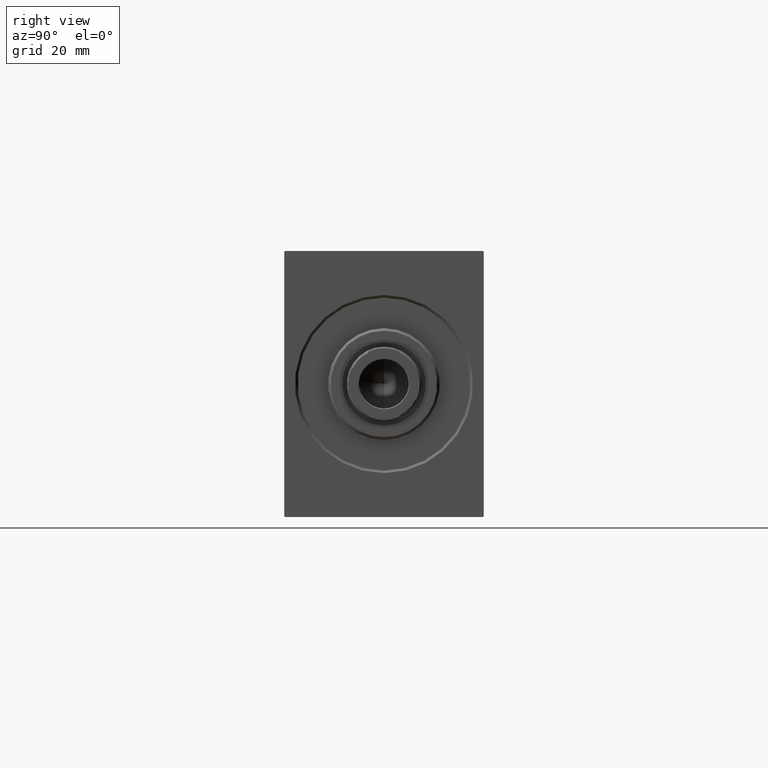
[diagram: clean part render]
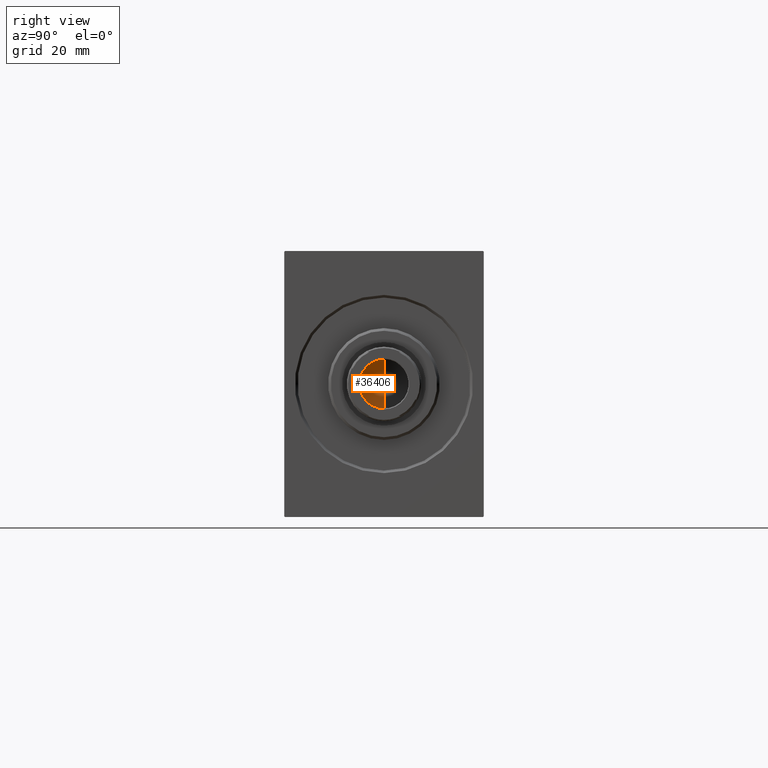
[diagram: same view with one face highlighted and labeled with its STEP entity id]
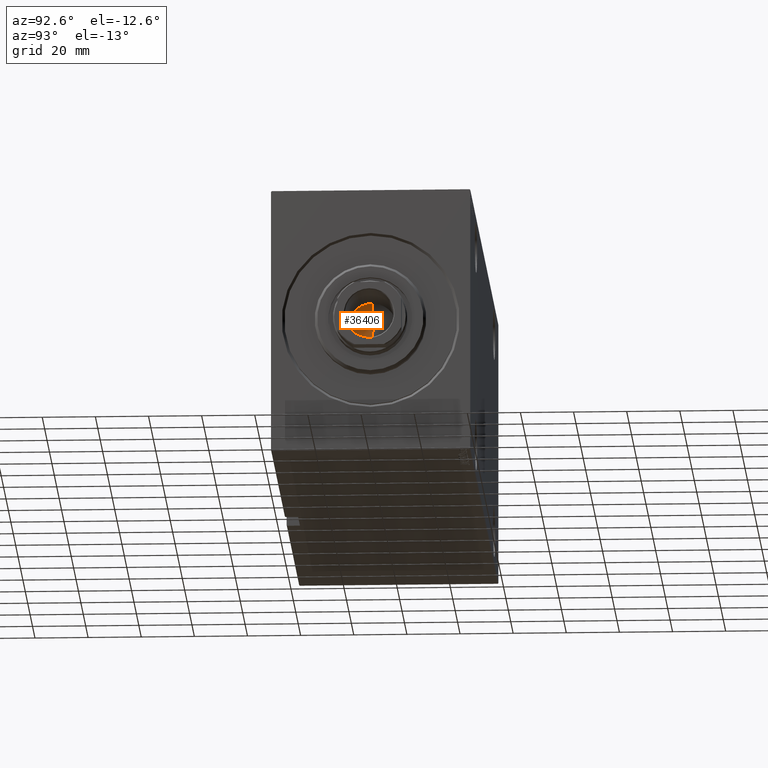
[diagram: same view with one face highlighted and labeled with its STEP entity id]
A machine part, right view. The second image highlights one B-rep face of the part: STEP entity #36406.
A second angle (auxiliary view) of the same face is appended — the face is thin or edge-on in the first view.
In plain terms, the highlighted conical surface has half-angle 59 deg.
Its self-contained STEP definition (entity closure, byte-faithful):
#829 = VERTEX_POINT ( 'NONE', #27912 ) ;
#1848 = VECTOR ( 'NONE', #13835, 1000.000000000000000 ) ;
#3857 = CARTESIAN_POINT ( 'NONE',  ( 9.249999999999994671, 0.000000000000000000, 206.0000000000000000 ) ) ;
#5690 = VECTOR ( 'NONE', #31519, 1000.000000000000000 ) ;
#5837 = CONICAL_SURFACE ( 'NONE', #32142, 9.249999999999994671, 1.029744258676652535 ) ;
#9040 = CARTESIAN_POINT ( 'NONE',  ( -9.249999999999994671, 1.132798289211300909E-15, 206.0000000000000000 ) ) ;
#10523 = ORIENTED_EDGE ( 'NONE', *, *, #42188, .F. ) ;
#12575 = FACE_OUTER_BOUND ( 'NONE', #23828, .T. ) ;
#13327 = ORIENTED_EDGE ( 'NONE', *, *, #38663, .T. ) ;
#13835 = DIRECTION ( 'NONE',  ( 0.8571673007021113344, 0.000000000000000000, 0.5150380749100558209 ) ) ;
#15888 = CARTESIAN_POINT ( 'NONE',  ( 0.000000000000000000, 0.000000000000000000, 206.0000000000000000 ) ) ;
#18299 = ORIENTED_EDGE ( 'NONE', *, *, #26458, .T. ) ;
#19280 = DIRECTION ( 'NONE',  ( -0.000000000000000000, -0.000000000000000000, 1.000000000000000000 ) ) ;
#21153 = DIRECTION ( 'NONE',  ( 1.000000000000000000, 0.000000000000000000, 0.000000000000000000 ) ) ;
#22467 = VERTEX_POINT ( 'NONE', #42301 ) ;
#22518 = CARTESIAN_POINT ( 'NONE',  ( 0.000000000000000000, 0.000000000000000000, 206.0000000000000000 ) ) ;
#23345 = LINE ( 'NONE', #3857, #1848 ) ;
#23828 = EDGE_LOOP ( 'NONE', ( #10523, #18299, #13327 ) ) ;
#23846 = AXIS2_PLACEMENT_3D ( 'NONE', #15888, #26493, #29115 ) ;
#26458 = EDGE_CURVE ( 'NONE', #22467, #35461, #31724, .T. ) ;
#26493 = DIRECTION ( 'NONE',  ( -0.000000000000000000, -0.000000000000000000, 1.000000000000000000 ) ) ;
#27912 = CARTESIAN_POINT ( 'NONE',  ( 9.249999999999994671, 0.000000000000000000, 206.0000000000000000 ) ) ;
#29115 = DIRECTION ( 'NONE',  ( 1.000000000000000000, 0.000000000000000000, 0.000000000000000000 ) ) ;
#31519 = DIRECTION ( 'NONE',  ( -0.8571673007021113344, 1.049727191138617463E-16, 0.5150380749100558209 ) ) ;
#31724 = LINE ( 'NONE', #41712, #5690 ) ;
#32142 = AXIS2_PLACEMENT_3D ( 'NONE', #22518, #19280, #21153 ) ;
#35461 = VERTEX_POINT ( 'NONE', #9040 ) ;
#36406 = ADVANCED_FACE ( 'NONE', ( #12575 ), #5837, .F. ) ;
#38663 = EDGE_CURVE ( 'NONE', #35461, #829, #42560, .T. ) ;
#41712 = CARTESIAN_POINT ( 'NONE',  ( -9.249999999999994671, 1.132798289211300909E-15, 206.0000000000000000 ) ) ;
#42188 = EDGE_CURVE ( 'NONE', #22467, #829, #23345, .T. ) ;
#42301 = CARTESIAN_POINT ( 'NONE',  ( -6.793016015247754405E-15, 0.000000000000000000, 200.4420392739950501 ) ) ;
#42560 = CIRCLE ( 'NONE', #23846, 9.249999999999994671 ) ;